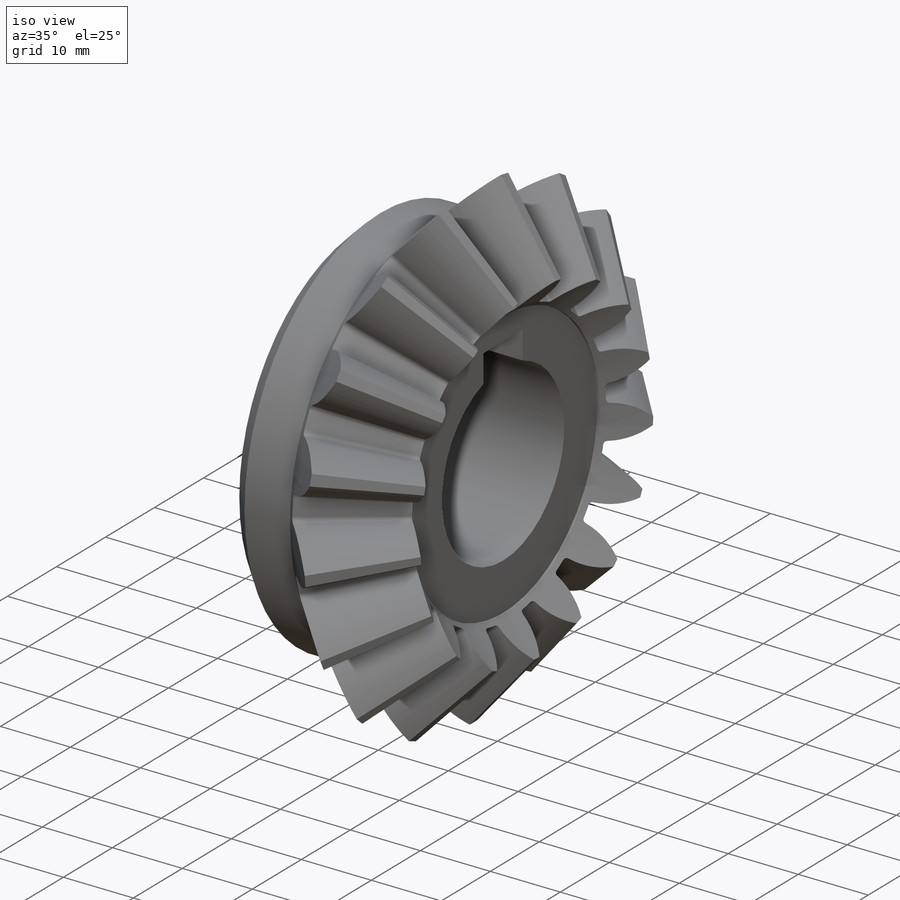
[diagram: iso view]
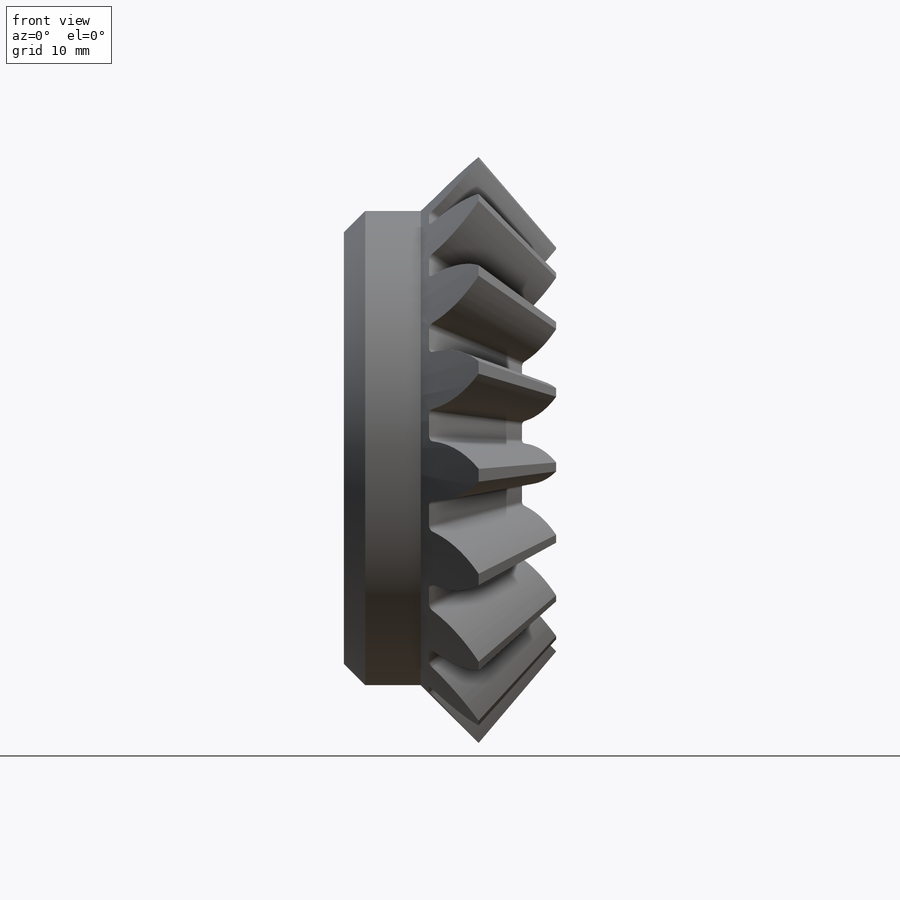
[diagram: front view]
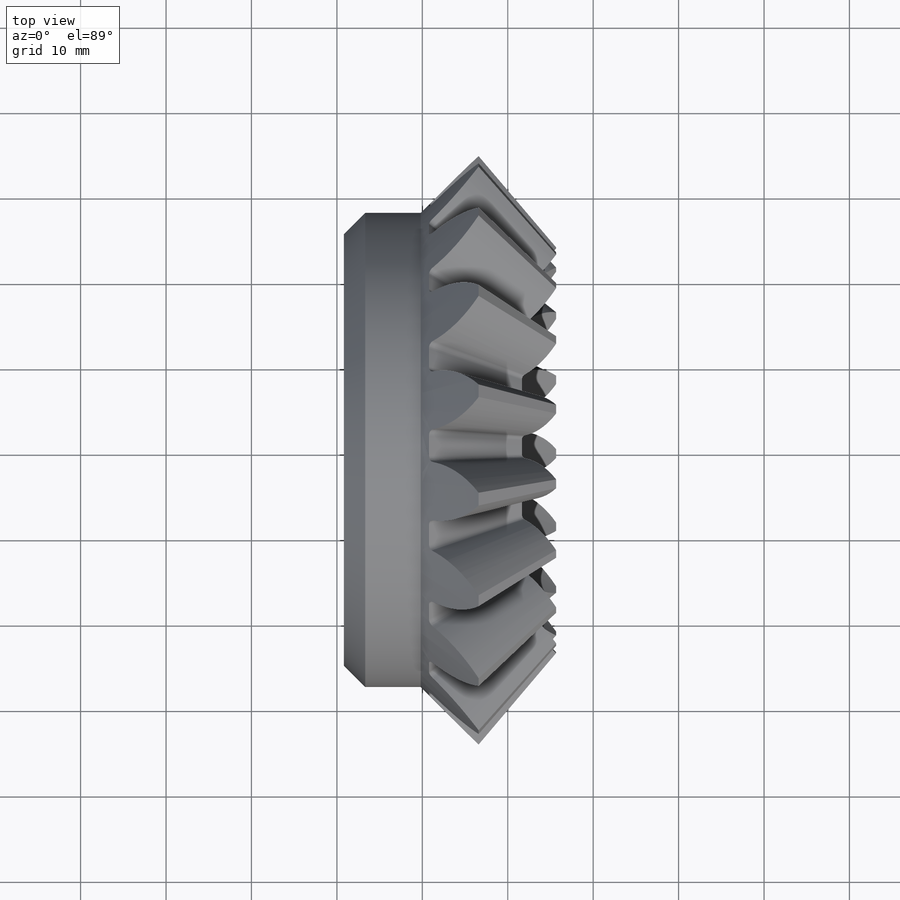
[diagram: top view]
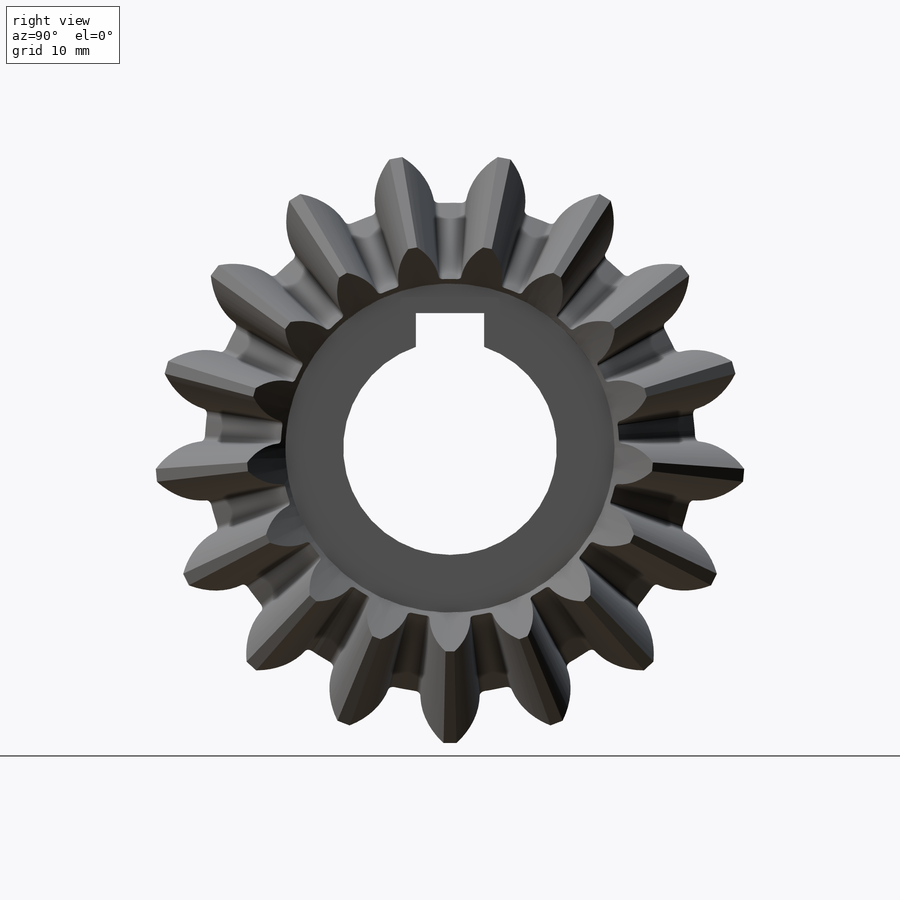
[diagram: right view]
SOLIDWORKS PART (.sldprt)
format: sldprt  version: not decoded by parser v0  size: 1,637,376 bytes
history: native  units: mm
features: sketch x15, thread x7, plane x5, cut_extrude x4, extrude x2, pattern_circular x2, material x1, revolve x1, cut_revolve x1, hole x1, fillet x1, chamfer x1 (+10 scaffold rows collapsed; 1 parser-record rows omitted)
feature tree (52):
  scaffold x10  (default folders/planes/origin — collapsed)
  material  " 40Х ГОСТ 4543-71"
  plane  "Plane1"
  plane  "Plane2"
  plane  "Plane3"
  parser-record x1  (decoder bookkeeping rows leaked as tree rows — omitted from the tree; the rows remain in map.json)
  extrude  "Hub"  [1 undecoded]
  sketch  "HubSke"  dims[Diameter=~55.87283mm]
  revolve  "Base-Revolve"  [1 undecoded]
  sketch  "BasProSke"  dims[c1.D2=~57.067268mm c1.D3=~57.067268mm c1.Fillet_rad=0.635mm c1.D1=80.0mm c1.h=15.875mm c2.D2=15.875mm c2.G1=0.635mm c2.G2=0.635mm c2.H2=~13.49375mm c2.Diameter=~80.079479mm c2.H1=~13.49375mm c2.Thickness=12.7mm c3.Diameter=88.9mm c3.MHD=25.4mm c3.D2=12.7mm c4.MHD=25.4mm c4.MHD_radius=12.7mm c5.MHD_radius=12.7mm c5.D1=~92.83079mm c6.D1=45.0deg c6.D2=~92.83079mm c7.D2=45.0deg c7.D1=70.0mm c8.D1=~129.348069deg c8.Addendum=3.75mm c9.D1=20.32mm c9.Pitch_rad=31.875mm c9.Dedendum_plus=5.57mm c9.Face_wid=14.0mm c10.D1=70.0mm c10.Pitch_ang=45.0deg c11.D1=~55.87283mm c11.D2=~35.813585mm c11.D3=~15.876524mm c12.D3=90.0deg c13.D3=~45.078057mm c13.D4=152.1923mm c14.D4=~4.755431deg c14.D1=360.0deg c14.Length=~9.186517mm]
  cut_extrude  "Bore"  [1 undecoded]
  sketch  "BorSke"  dims[Diameter=20.0mm D2=35.0mm D3=12.0mm D1=~90.000102mm]
  sketch  "HoldingSke"  dims[c1.Dr=15.875mm c1.MHD=~55.87283mm c1.Hub_dia=60.0mm c1.Bore=20.0mm c1.MBD=20.0mm c1.Num_teeth=7.0mm c1.D1=115.0mm c2.Num_teeth=17.0deg c2.Pitch_radius=~46.415395mm c2.Pitch=~0.266667mm c2.Width=8.636mm c2.Chamfer_wid=3.175mm c2.Chamfer_dep=12.7mm c2.Mounting_dist=45.0mm c2.D1=115.0mm c2.Show_teeth=17.0deg c2.Thickness=12.7mm c2.OAL=~45.000051mm c2.T_dim=2.8mm c3.D1=115.0mm c3.Ap=20.0deg c3.H=19.05mm c3.Pitch_radius=~180.312849mm c3.Width=14.0mm c3.F=44.45mm c3.Backlash=0.122mm c3.Addendum_factor=~25.318689mm c3.Dedendum_factor=~11.91639mm c3.Fillet_factor=5.08mm c4.D1=~180.312849mm c4.Addendum_fac=1.0deg c5.D1=~180.312849mm c5.Dedendum_fac=1.188deg c6.D1=~180.312849mm c6.Clearance_fac=0.188deg c6.Dedendum_add=0.001mm c7.D1=115.0mm c7.Mating_teeth=17.0deg c7.MnMD=~35.813585mm c7.Module=3.75mm]
  plane  "ToothPln"
  plane  "ToothPln2"  Offset=45.078057mm
  sketch  "TooCutSke"  dims[Overcut_dia=72.675mm Root_dia=54.838mm Pitch_dia=63.75mm Base_dia=~59.905405mm Flank_rad=12.75mm Root_fillet=0.706mm Radius=35.625mm D2=121.412mm Half_ang=~10.588235deg Half_CT=~2.880054mm]
  sketch  "TooCutSke2"  dims[Diameter=0.0254mm Dedendum_plus=5.57mm]
  pattern_circular  "TeethCuts"  Count=17 Angle=21.176471deg Num_teeth=17
  sketch  "KeySke"  dims[D1=60.0mm Offset=12.8mm Width=6.0mm]
  cut_extrude  "Keyway"  Depth=90.000102mm
  pattern_circular  "Keyway2"  Count=2 Angle=90deg ConfigurationName=0mm CopiedFlag=0 PartNumberID=0mm
  sketch  "Эскиз10"  dims[D1=55.5mm]
  sketch  "Эскиз1"  dims[D1=59.5mm]
  cut_extrude  "Вытянуть1"  Depth=6.5mm
  sketch  "Эскиз11"
  cut_revolve  "Вырез-Повернуть1"  Angle=360deg
  sketch  "Эскиз2"  dims[D1=38.5mm]
  cut_extrude  "Вытянуть2"  Depth=17mm
  sketch  "Эскиз5"  dims[D1=4.5mm]
  hole  "Отверстие обработанное метчиком M4x0.71"  [1 undecoded]
  sketch  "Трехмерный эскиз2"
  sketch  "Эскиз7"  dims[hole-wizard template sketch: 39 standard entries collapsed; hole parameters kept: c13.Диаметр сверла=3.3mm c13.Глубина сверла=13.5mm c13.Диаметр передней зенковки=4.5mm c13.D4=~33.297463mm c13.Угол передней зенковки=90.0deg c14.D5=~14.816244mm c14.Угол заточки сверла=118.0deg]
  thread  "Отверстие резьбы1"  Diameter=5.112487mm  [1 undecoded]
  thread  "Отверстие резьбы2"  Diameter=5.112487mm  [1 undecoded]
  thread  "Отверстие резьбы3"  Diameter=5.112487mm  [1 undecoded]
  thread  "Отверстие резьбы4"  Diameter=5.112487mm  [1 undecoded]
  thread  "Отверстие резьбы5"  Diameter=5.112487mm  [1 undecoded]
  thread  "Отверстие резьбы6"  Diameter=5.112487mm  [1 undecoded]
  thread  "Отверстие резьбы7"  Diameter=5.112487mm  [1 undecoded]
  sketch  "Эскиз8"  dims[D1=35.0mm D2=~4.353137mm]
  extrude  "Вытянуть3"  Depth=8.5mm
  fillet  "Скругление1"  Radius=3mm
  chamfer  "Фаска1"  Distance=2.5mm Angle=45deg
decode coverage: 29 of 35 modeling features carry decoded parameters
note: ~ marks probable driven/reference dimensions
note: 11 parameter values undecoded
summary: no parameter record found for 4 features
note: suppression state not decoded; provenance and decode notes live in map.json
